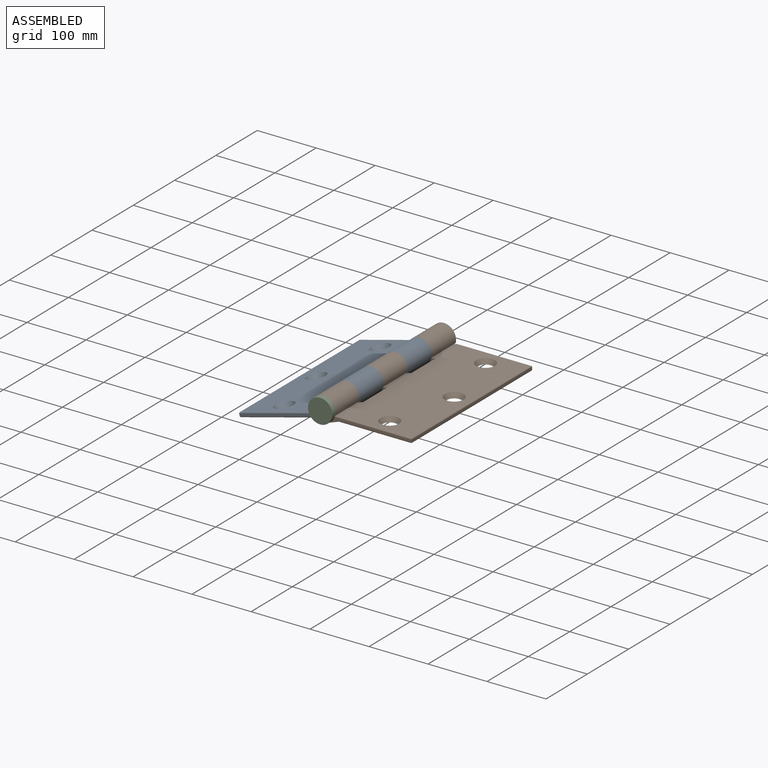
[diagram: assembled view]
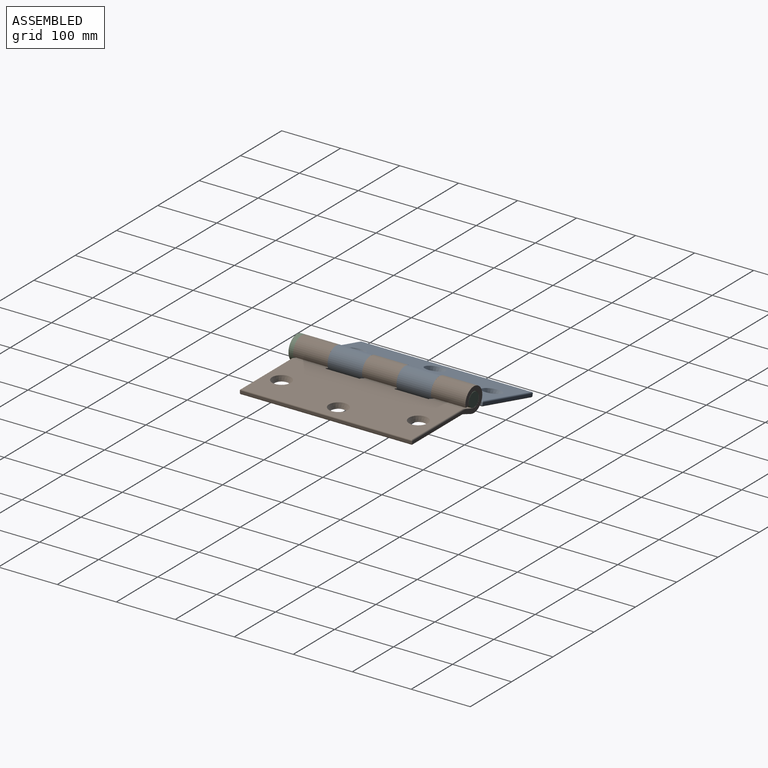
[diagram: assembled view, second angle]
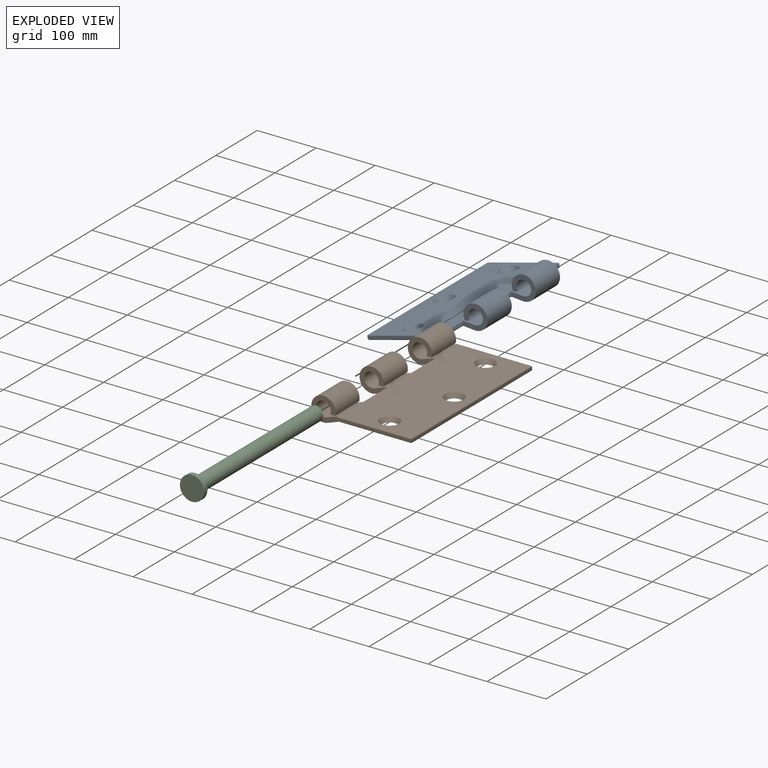
[diagram: exploded view]
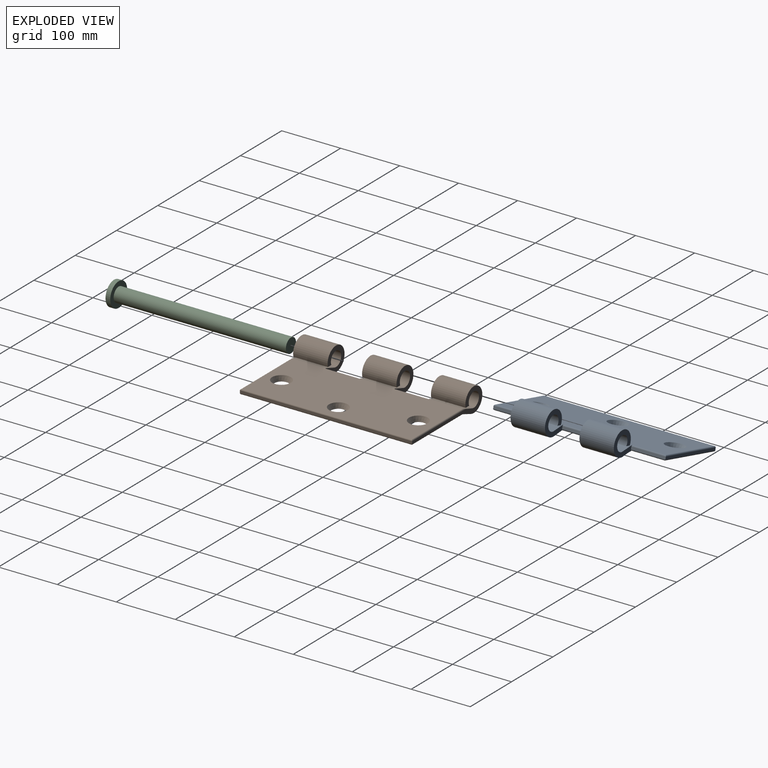
[diagram: exploded view, second angle]
ASSEMBLY  parts=3 mates=2
PART A: 37 faces, bbox 170x292x41 mm
  f0: plane 58.4x20.54mm, normal (0.32,0,0.95), area 1264.7mm2, adj f8,f12,f21,f24
  f1: plane 58.4x20.54mm, normal (0.32,0,0.95), area 1264.7mm2, adj f9,f12,f19,f22
  f2: plane 58.4x17.59mm, normal (-0.34,0,-0.94), area 1091mm2, adj f4,f14,f21,f24
  f3: plane 58.4x17.59mm, normal (-0.34,0,-0.94), area 1091mm2, adj f5,f14,f19,f22
  f4: cylinder r=20.5mm len=58.4mm, axis (0,1,0), area 6348.4mm2, adj f2,f6,f21,f24
  f5: cylinder r=20.5mm len=58.4mm, axis (0,1,0), area 6348.4mm2, adj f3,f7,f19,f22
  f6: plane 58.4x8.42mm, normal (0,0,-1), area 492mm2, adj f4,f8,f21,f24
  f7: plane 58.4x8.42mm, normal (0,0,-1), area 492mm2, adj f5,f9,f19,f22
  f8: cylinder r=12.5mm len=58.4mm, axis (0,1,0), area 3975.6mm2, adj f0,f6,f21,f24
  f9: cylinder r=12.5mm len=58.4mm, axis (0,1,0), area 3975.6mm2, adj f1,f7,f19,f22
  f10: plane 125x4mm, normal (0,-1,0), area 500mm2, adj f13,f18,f28,f33
  f11: plane 125x4mm, normal (0,1,0), area 500mm2, adj f13,f23,f30,f35
  f12: plane 288x123mm, normal (0,0,1), area 32668.9mm2, adj f0,f1,f15,f16,f17,f19,f21,f22
  f13: plane 292x4mm, normal (-1,0,0), area 1168mm2, adj f10,f11,f29,f34
  f14: plane 288x123mm, normal (0,0,-1), area 33724.4mm2, adj f2,f3,f15,f16,f17,f19,f21,f22
  f15: cone r=12mm half-angle=26.6deg, axis (0,0,1), area 786.8mm2, adj f12,f14
  f16: cone r=12mm half-angle=26.6deg, axis (0,0,1), area 786.8mm2, adj f12,f14
  f17: cone r=12mm half-angle=26.6deg, axis (0,0,1), area 786.8mm2, adj f12,f14
  f18: plane 58.4x4mm, normal (1,0,0), area 233.6mm2, adj f10,f19,f27,f32
  f19: plane 47x41mm, normal (0,-1,0), area 865.7mm2, adj f1,f3,f5,f7,f9,f12,f14,f18
  f20: plane 58.4x4mm, normal (1,0,0), area 233.6mm2, adj f21,f22,f25,f26
  f21: plane 47x41mm, normal (0,-1,0), area 865.7mm2, adj f0,f2,f4,f6,f8,f12,f14,f20
  f22: plane 47x41mm, normal (0,1,0), area 865.7mm2, adj f1,f3,f5,f7,f9,f12,f14,f20
  f23: plane 58.4x4mm, normal (1,0,0), area 233.6mm2, adj f11,f24,f31,f36
  f24: plane 47x41mm, normal (0,1,0), area 865.7mm2, adj f0,f2,f4,f6,f8,f12,f14,f23
  f25: cylinder r=2mm len=58.4mm, axis (0,1,0), area 183.5mm2, adj f12,f20,f21,f22
  f26: cylinder r=2mm len=58.4mm, axis (0,-1,0), area 183.5mm2, adj f14,f20,f21,f22
  f27: cylinder r=2mm len=58.4mm, axis (0,1,0), area 181.2mm2, adj f12,f18,f19,f28
  f28: cylinder r=2mm len=125mm, axis (1,0,0), area 388.1mm2, adj f10,f12,f27,f29
  f29: cylinder r=2mm len=292mm, axis (0,-1,0), area 912.8mm2, adj f12,f13,f28,f30
  f30: cylinder r=2mm len=125mm, axis (-1,0,0), area 388.1mm2, adj f11,f12,f29,f31
  f31: cylinder r=2mm len=58.4mm, axis (0,1,0), area 181.2mm2, adj f12,f23,f24,f30
  f32: cylinder r=2mm len=58.4mm, axis (0,-1,0), area 181.2mm2, adj f14,f18,f19,f33
  f33: cylinder r=2mm len=125mm, axis (-1,0,0), area 388.1mm2, adj f10,f14,f32,f34
  f34: cylinder r=2mm len=292mm, axis (0,1,0), area 912.8mm2, adj f13,f14,f33,f35
  f35: cylinder r=2mm len=125mm, axis (1,0,0), area 388.1mm2, adj f11,f14,f34,f36
  f36: cylinder r=2mm len=58.4mm, axis (0,-1,0), area 181.2mm2, adj f14,f23,f24,f35
PART B: 39 faces, bbox 170x292x41 mm
  f0: plane 58.4x20.54mm, normal (-0.32,0,0.95), area 1264.7mm2, adj f8,f11,f25,f27
  f1: plane 58.4x20.54mm, normal (-0.32,0,0.95), area 1262mm2, adj f9,f11,f18,f24,f35
  f2: plane 58.4x17.59mm, normal (0.34,0,-0.94), area 1091mm2, adj f4,f13,f25,f27
  f3: plane 58.4x23.17mm, normal (0.34,0,-0.94), area 1093.5mm2, adj f5,f13,f18,f24,f38
  f4: cylinder r=20.5mm len=58.4mm, axis (0,1,0), area 6348.4mm2, adj f2,f6,f25,f27
  f5: cylinder r=20.5mm len=58.4mm, axis (0,1,0), area 6348.4mm2, adj f3,f7,f18,f24
  f6: plane 58.4x8.42mm, normal (0,0,-1), area 492mm2, adj f4,f8,f25,f27
  f7: plane 58.4x8.42mm, normal (0,0,-1), area 492mm2, adj f5,f9,f18,f24
  f8: cylinder r=12.5mm len=58.4mm, axis (0,1,0), area 3975.6mm2, adj f0,f6,f25,f27
  f9: cylinder r=12.5mm len=58.4mm, axis (0,1,0), area 3975.6mm2, adj f1,f7,f18,f24
  f10: plane 58.4x20.54mm, normal (-0.32,0,0.95), area 1262mm2, adj f11,f17,f19,f28,f33
  f11: plane 288x123mm, normal (0,0,1), area 32777.7mm2, adj f0,f1,f10,f20,f21,f22,f24,f25
  f12: plane 292x4mm, normal (1,0,0), area 1168mm2, adj f18,f19,f34,f37
  f13: plane 288x123mm, normal (0,0,-1), area 33833.2mm2, adj f2,f3,f14,f20,f21,f22,f24,f25
  f14: plane 58.4x23.17mm, normal (0.34,0,-0.94), area 1093.5mm2, adj f13,f15,f19,f28,f36
  f15: cylinder r=20.5mm len=58.4mm, axis (0,1,0), area 6348.4mm2, adj f14,f16,f19,f28
  f16: plane 58.4x8.42mm, normal (0,0,-1), area 492mm2, adj f15,f17,f19,f28
  f17: cylinder r=12.5mm len=58.4mm, axis (0,1,0), area 3975.6mm2, adj f10,f16,f19,f28
  f18: plane 170x41mm, normal (0,-1,0), area 1363.5mm2, adj f1,f3,f5,f7,f9,f12,f35,f38
  f19: plane 170x41mm, normal (0,1,0), area 1363.5mm2, adj f10,f12,f14,f15,f16,f17,f33,f36
  f20: cone r=12mm half-angle=26.6deg, axis (0,0,1), area 786.8mm2, adj f11,f13
  f21: cone r=12mm half-angle=26.6deg, axis (0,0,1), area 786.8mm2, adj f11,f13
  f22: cone r=12mm half-angle=26.6deg, axis (0,0,1), area 786.8mm2, adj f11,f13
  f23: plane 58.4x4mm, normal (-1,0,0), area 233.6mm2, adj f24,f25,f30,f32
  f24: plane 47x41mm, normal (0,1,0), area 865.7mm2, adj f1,f3,f5,f7,f9,f11,f13,f23
  f25: plane 47x41mm, normal (0,-1,0), area 865.7mm2, adj f0,f2,f4,f6,f8,f11,f13,f23
  f26: plane 58.4x4mm, normal (-1,0,0), area 233.6mm2, adj f27,f28,f29,f31
  f27: plane 47x41mm, normal (0,1,0), area 865.7mm2, adj f0,f2,f4,f6,f8,f11,f13,f26
  f28: plane 47x41mm, normal (0,-1,0), area 865.7mm2, adj f10,f11,f13,f14,f15,f16,f17,f26
  f29: cylinder r=2mm len=58.4mm, axis (0,-1,0), area 183.5mm2, adj f11,f26,f27,f28
  f30: cylinder r=2mm len=58.4mm, axis (0,-1,0), area 183.5mm2, adj f11,f23,f24,f25
  f31: cylinder r=2mm len=58.4mm, axis (0,1,0), area 183.5mm2, adj f13,f26,f27,f28
  f32: cylinder r=2mm len=58.4mm, axis (0,1,0), area 183.5mm2, adj f13,f23,f24,f25
  f33: cylinder r=2mm len=130.99mm, axis (1,0,0), area 397.3mm2, adj f10,f11,f19,f34
  f34: cylinder r=2mm len=292mm, axis (0,-1,0), area 912.8mm2, adj f11,f12,f33,f35
  f35: cylinder r=2mm len=130.99mm, axis (-1,0,0), area 397.3mm2, adj f1,f11,f18,f34
  f36: cylinder r=2mm len=125mm, axis (-1,0,0), area 384mm2, adj f13,f14,f19,f37
  f37: cylinder r=2mm len=292mm, axis (0,1,0), area 912.8mm2, adj f12,f13,f36,f38
  f38: cylinder r=2mm len=125mm, axis (1,0,0), area 384mm2, adj f3,f13,f18,f37
PART C: 5 faces, bbox 41x300x41 mm
  f0: cylinder r=12.25mm len=292mm, axis (0,-1,0), area 22475mm2, adj f1,f4
  f1: plane 24.5x24.5mm, normal (0,1,0), area 471.4mm2, adj f0
  f2: cylinder r=20.5mm len=41mm, axis (0,1,0), area 1030.4mm2, adj f3,f4
  f3: plane 41x41mm, normal (0,-1,0), area 1320.3mm2, adj f2
  f4: plane 41x41mm, normal (0,1,0), area 848.8mm2, adj f0,f2
PLACE A rot(axis=(0,-1,0),14.8deg) t=(-52.17,95.21,-67.93)mm
PLACE B t=(-53.26,95.21,-61.84)mm fixed
PLACE C rot(axis=(0,-1,0),91.9deg) t=(-24,95.21,-80.17)mm
MATE revolute A.f4 <-> B.f4  axis (0,1,0) through (-29.76,36.81,-56.84)mm
MATE revolute C.f0 <-> B.f4  axis (0,1,0) through (-29.76,95.21,-56.84)mm
